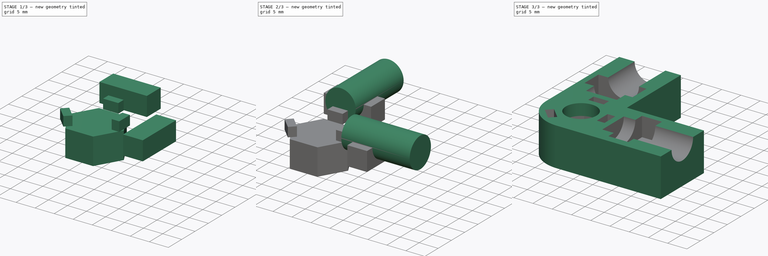
[diagram: build sequence overview — one tinted view per stage of 3, left to right]
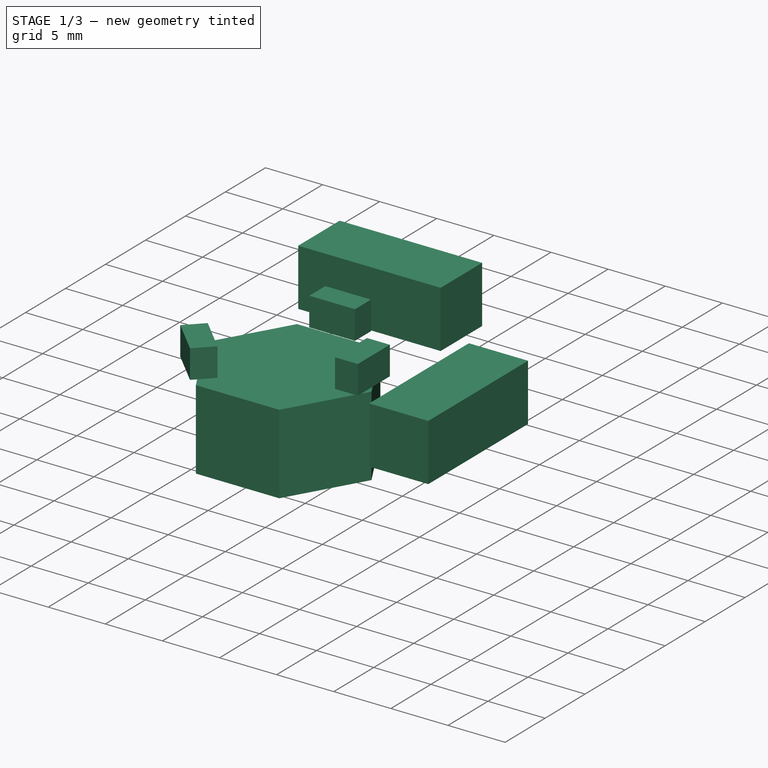
[diagram: stage 1 of 3 — iso view after this stage's code; geometry added in this stage tinted green]
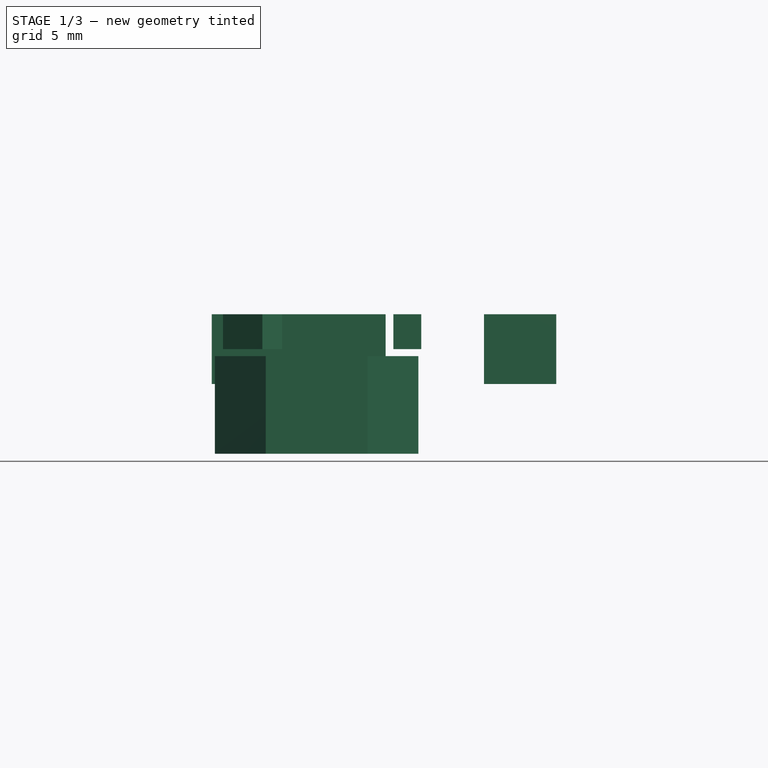
[diagram: stage 1 of 3 — front view after this stage's code; geometry added in this stage tinted green]
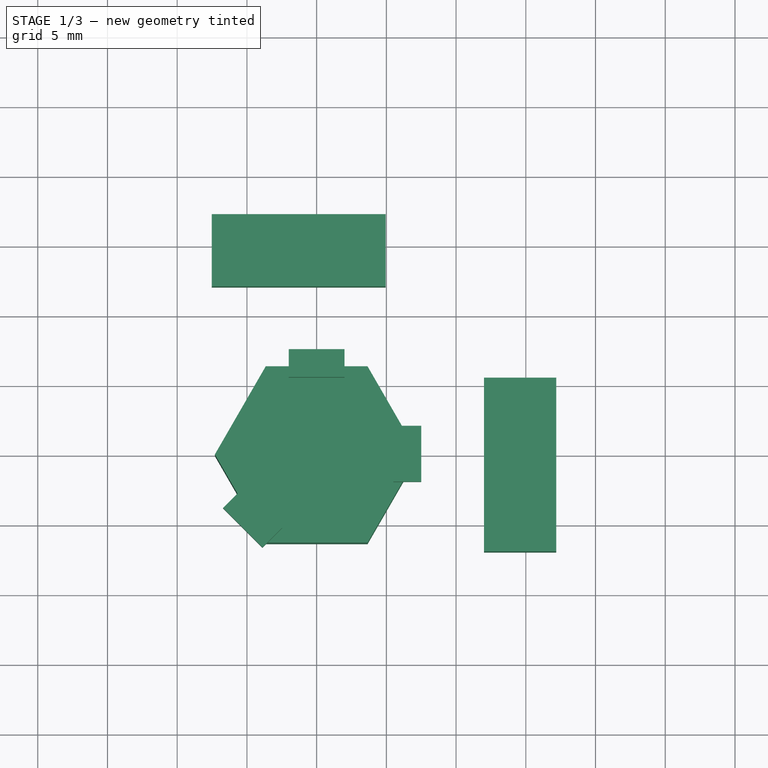
[diagram: stage 1 of 3 — top view after this stage's code; geometry added in this stage tinted green]
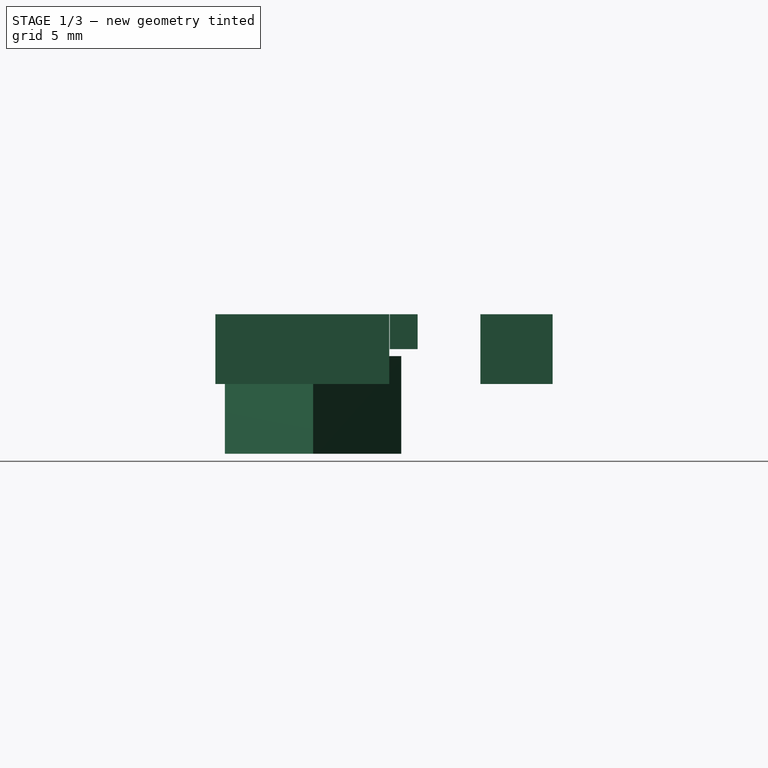
[diagram: stage 1 of 3 — right view after this stage's code; geometry added in this stage tinted green]
FCSTD DOCUMENT  (FreeCAD 0.16R6707 (Git))
Label: Corner_Top
License: All rights reserved
LicenseURL: http://en.wikipedia.org/wiki/All_rights_reserved
objects: Sketcher::SketchObject×6, PartDesign::Pad×6, Part::MultiFuse×1, Part::Cut×1
note: 20 computed .brp shape members not serialized (recipe doc carries the construction recipe); baked Part::Feature solids carry a one-line shape summary decoded from their .brp

FEATURE [Sketcher::SketchObject] Sketch003
  Placement = pos=(0,0,10) rot=(0,0,1;0rad)
  sketch-geometry (8):
    g0: LineSegment StartX=-7.51951 StartY=17.1801 StartZ=0 EndX=4.94919 EndY=17.1801 EndZ=0
    g1: LineSegment StartX=4.94919 StartY=17.1801 StartZ=0 EndX=4.94919 EndY=12 EndZ=0
    g2: LineSegment StartX=4.94919 StartY=12 StartZ=0 EndX=-7.51951 EndY=12 EndZ=0
    g3: LineSegment StartX=-7.51951 StartY=12 StartZ=0 EndX=-7.51951 EndY=17.1801 EndZ=0
    g4: LineSegment StartX=12 StartY=5.46027 StartZ=0 EndX=17.1801 EndY=5.46027 EndZ=0
    g5: LineSegment StartX=17.1801 StartY=5.46027 StartZ=0 EndX=17.1801 EndY=-7.00843 EndZ=0
    g6: LineSegment StartX=17.1801 StartY=-7.00843 StartZ=0 EndX=12 EndY=-7.00843 EndZ=0
    g7: LineSegment StartX=12 StartY=-7.00843 StartZ=0 EndX=12 EndY=5.46027 EndZ=0
  constraints (20):
    c: Coincident(g0,g1)
    c: Coincident(g1,g2)
    c: Coincident(g2,g3)
    c: Coincident(g3,g0)
    c: Horizontal(g0)
    c: Horizontal(g2)
    c: Vertical(g1)
    c: Vertical(g3)
    c: Coincident(g4,g5)
    c: Coincident(g5,g6)
    c: Coincident(g6,g7)
    c: Coincident(g7,g4)
    c: Horizontal(g4)
    c: Horizontal(g6)
    c: Vertical(g5)
    c: Vertical(g7)
    c: Equal(g1,g6)
    c: Equal(g7,g2)
    c: DistanceX(g-1,g6) = 12
    c: DistanceY(g-1,g1) = 12
FEATURE [PartDesign::Pad] Pad003  label="NutMount"
  Length = 5
  Length2 = 100
  Placement = pos=(0,0,10) rot=(0,0,1;0rad)
  Reversed = true
  Sketch = -> Sketch003
  Type = 0
FEATURE [Sketcher::SketchObject] Sketch004
  Placement = pos=(0,0,10) rot=(0,0,1;0rad)
  sketch-geometry (13):
    g0: LineSegment StartX=-2 StartY=7.5 StartZ=0 EndX=2 EndY=7.5 EndZ=0
    g1: LineSegment StartX=2 StartY=7.5 StartZ=0 EndX=2 EndY=5.5 EndZ=0
    g2: LineSegment StartX=2 StartY=5.5 StartZ=0 EndX=-2 EndY=5.5 EndZ=0
    g3: LineSegment StartX=-2 StartY=5.5 StartZ=0 EndX=-2 EndY=7.5 EndZ=0
    g4: LineSegment StartX=5.5 StartY=2 StartZ=0 EndX=7.5 EndY=2 EndZ=0
    g5: LineSegment StartX=7.5 StartY=2 StartZ=0 EndX=7.5 EndY=-2 EndZ=0
    g6: LineSegment StartX=7.5 StartY=-2 StartZ=0 EndX=5.5 EndY=-2 EndZ=0
    g7: LineSegment StartX=5.5 StartY=-2 StartZ=0 EndX=5.5 EndY=2 EndZ=0
    g8: LineSegment StartX=-6.71751 StartY=-3.88909 StartZ=0 EndX=-5.3033 EndY=-2.47487 EndZ=0
    g9: LineSegment StartX=-5.3033 StartY=-2.47487 StartZ=0 EndX=-2.47487 EndY=-5.3033 EndZ=0
    g10: LineSegment StartX=-2.47487 StartY=-5.3033 StartZ=0 EndX=-3.88909 EndY=-6.71751 EndZ=0
    g11: LineSegment StartX=-6.71751 StartY=-3.88909 StartZ=0 EndX=-3.88909 EndY=-6.71751 EndZ=0
    g12: LineSegment [constr] StartX=-5.3033 StartY=-5.3033 StartZ=0 EndX=0 EndY=0 EndZ=0
  constraints (41):
    c: Coincident(g0,g1)
    c: Coincident(g1,g2)
    c: Coincident(g2,g3)
    c: Coincident(g3,g0)
    c: Horizontal(g0)
    c: Horizontal(g2)
    c: Vertical(g1)
    c: Vertical(g3)
    c: Symmetric(g2,g1,g-2)
    c: DistanceX(g0,g0) = 4
    c: DistanceY(g1,g1) = 2
    c: DistanceY(g-1,g2) = 5.5
    c: Coincident(g4,g5)
    c: Coincident(g5,g6)
    c: Coincident(g6,g7)
    c: Coincident(g7,g4)
    c: Horizontal(g4)
    c: Horizontal(g6)
    c: Vertical(g5)
    c: Vertical(g7)
    c: Symmetric(g4,g6,g-1)
    c: DistanceX(g-1,g4) = 5.5
    c: Coincident(g8,g9)
    c: Coincident(g9,g10)
    c: Coincident(g11,g10)
    c: Coincident(g8,g11)
    c: Parallel(g8,g10)
    c: Parallel(g11,g9)
    c: Perpendicular(g9,g8)
    c: Equal(g8,g10)
    c: Equal(g10,g4)
    c: Equal(g4,g3)
    c: Equal(g9,g11)
    c: Equal(g11,g2)
    c: Equal(g2,g7)
    c: Coincident(g12,g-1)
    c: PointOnObject(g12,g11)
    c: Angle(g12,g-1) = 2.35619
    c: Symmetric(g8,g10,g12)
    c: Perpendicular(g12,g9)
    c: Distance(g-1,g12) = 7.5
FEATURE [PartDesign::Pad] Pad004  label="Clip"
  Length = 2.5
  Length2 = 100
  Placement = pos=(0,0,10) rot=(0,0,1;0rad)
  Reversed = true
  Sketch = -> Sketch004
  Type = 0
FEATURE [Sketcher::SketchObject] Sketch005
  Placement = pos=(0,0,0) rot=(-1,0,0;3.14159rad)
  sketch-geometry (7):
    g0: LineSegment StartX=3.65 StartY=-6.32199 StartZ=0 EndX=7.3 EndY=0 EndZ=0
    g1: LineSegment StartX=7.3 StartY=0 StartZ=0 EndX=3.65 EndY=6.32199 EndZ=0
    g2: LineSegment StartX=3.65 StartY=6.32199 StartZ=0 EndX=-3.65 EndY=6.32199 EndZ=0
    g3: LineSegment StartX=-3.65 StartY=6.32199 StartZ=0 EndX=-7.3 EndY=0 EndZ=0
    g4: LineSegment StartX=-7.3 StartY=0 StartZ=0 EndX=-3.65 EndY=-6.32199 EndZ=0
    g5: LineSegment StartX=-3.65 StartY=-6.32199 StartZ=0 EndX=3.65 EndY=-6.32199 EndZ=0
    g6: Circle [constr] CenterX=0 CenterY=0 CenterZ=0 NormalX=0 NormalY=0 NormalZ=1 Radius=7.3
  constraints (16):
    c: Coincident(g0,g1)
    c: Coincident(g1,g2)
    c: Coincident(g2,g3)
    c: Coincident(g3,g4)
    c: Coincident(g4,g5)
    c: Coincident(g5,g0)
    c: Equal(g0, g1-g5) x5
    c: PointOnObject(g0,g6)
    c: PointOnObject(g1,g6)
    c: PointOnObject(g2,g6)
    c: PointOnObject(g3,g6)
    c: PointOnObject(g4,g6)
    c: PointOnObject(g5,g6)
    c: Coincident(g6,g-1)
    c: Radius(g6) = 7.3
    c: PointOnObject(g3,g-1)
FEATURE [PartDesign::Pad] Pad005  label="NutFlush"
  Length = 7
  Length2 = 100
  Placement = pos=(0,0,0) rot=(-1,0,0;3.14159rad)
  Reversed = true
  Sketch = -> Sketch005
  Type = 0
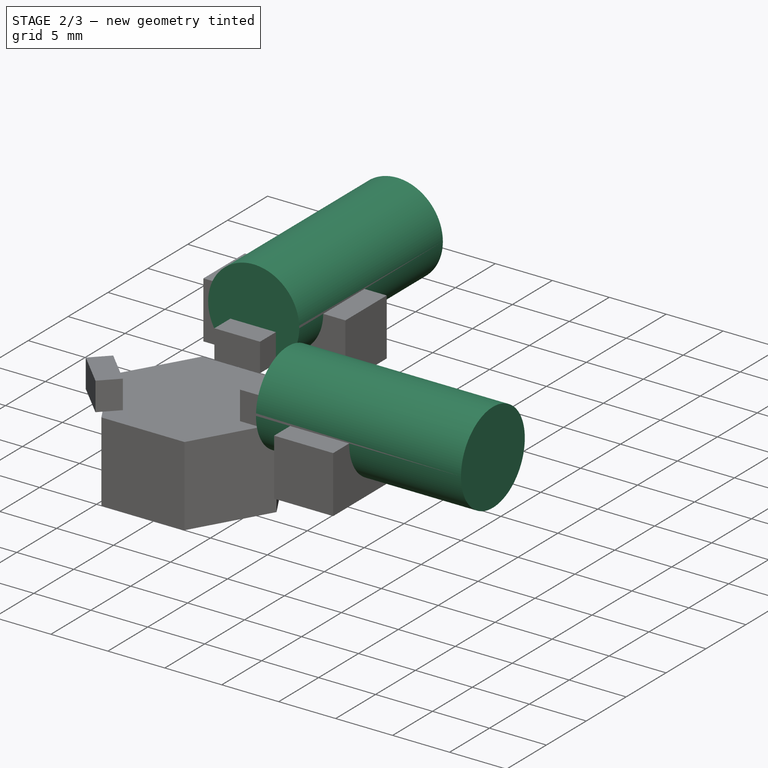
[diagram: stage 2 of 3 — iso view after this stage's code; geometry added in this stage tinted green]
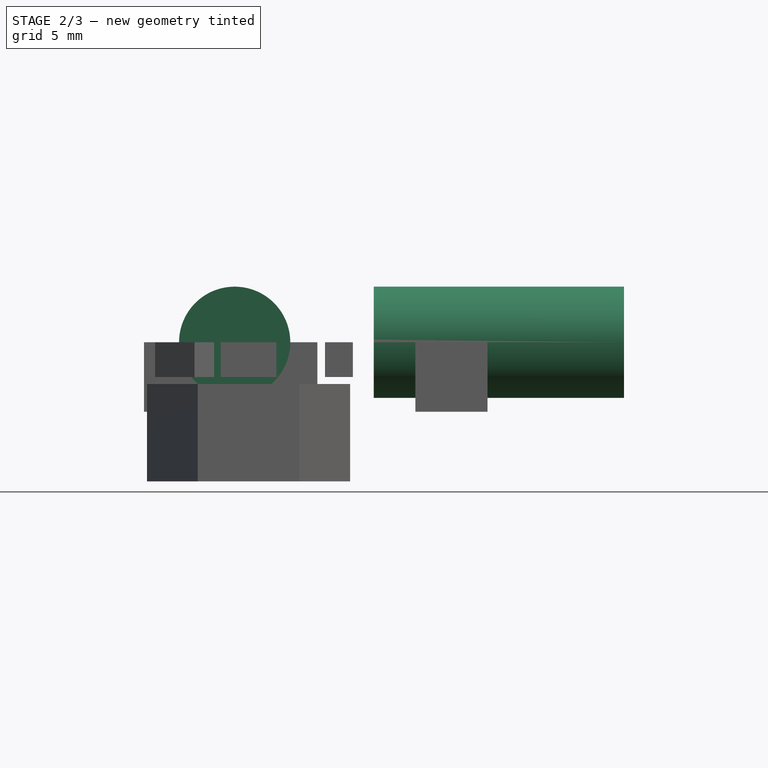
[diagram: stage 2 of 3 — front view after this stage's code; geometry added in this stage tinted green]
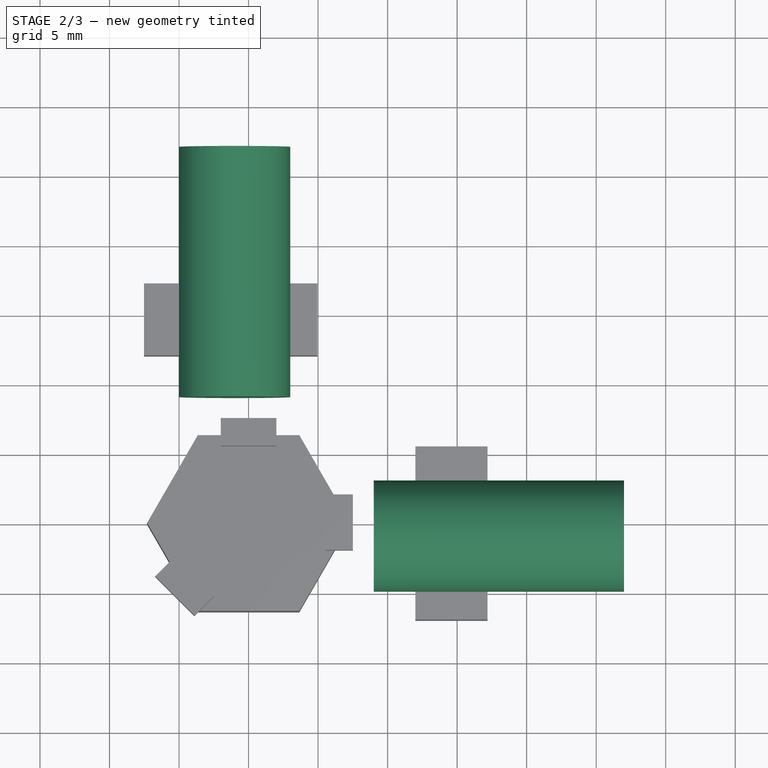
[diagram: stage 2 of 3 — top view after this stage's code; geometry added in this stage tinted green]
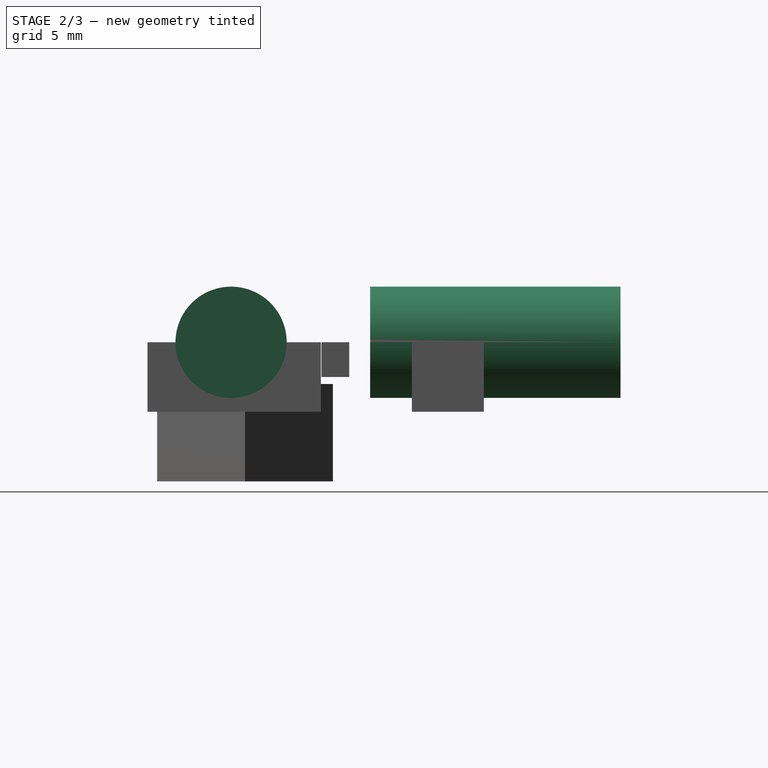
[diagram: stage 2 of 3 — right view after this stage's code; geometry added in this stage tinted green]
FEATURE [Sketcher::SketchObject] Sketch001
  Placement = pos=(27,0,0) rot=(0.57735,0.57735,0.57735;2.0944rad)
  sketch-geometry (1):
    g0: Circle CenterX=-1 CenterY=10 CenterZ=0 NormalX=0 NormalY=0 NormalZ=1 Radius=4
  constraints (3):
    c: Radius(g0) = 4
    c: DistanceY(g-1,g0) = 10
    c: DistanceX(g0,g-1) = 1
FEATURE [PartDesign::Pad] Pad001  label="Mount001"
  Length = 18
  Length2 = 100
  Placement = pos=(27,0,0) rot=(0.57735,0.57735,0.57735;2.0944rad)
  Reversed = true
  Sketch = -> Sketch001
  Type = 0
FEATURE [Sketcher::SketchObject] Sketch002
  Placement = pos=(0,27,0) rot=(1,0,0;1.5708rad)
  sketch-geometry (1):
    g0: Circle CenterX=-1 CenterY=10 CenterZ=0 NormalX=0 NormalY=0 NormalZ=1 Radius=4
  constraints (3):
    c: DistanceX(g0,g-1) = 1
    c: DistanceY(g-1,g0) = 10
    c: Radius(g0) = 4
FEATURE [PartDesign::Pad] Pad002  label="Mount002"
  Length = 18
  Length2 = 100
  Placement = pos=(0,27,0) rot=(1,0,0;1.5708rad)
  Sketch = -> Sketch002
  Type = 0
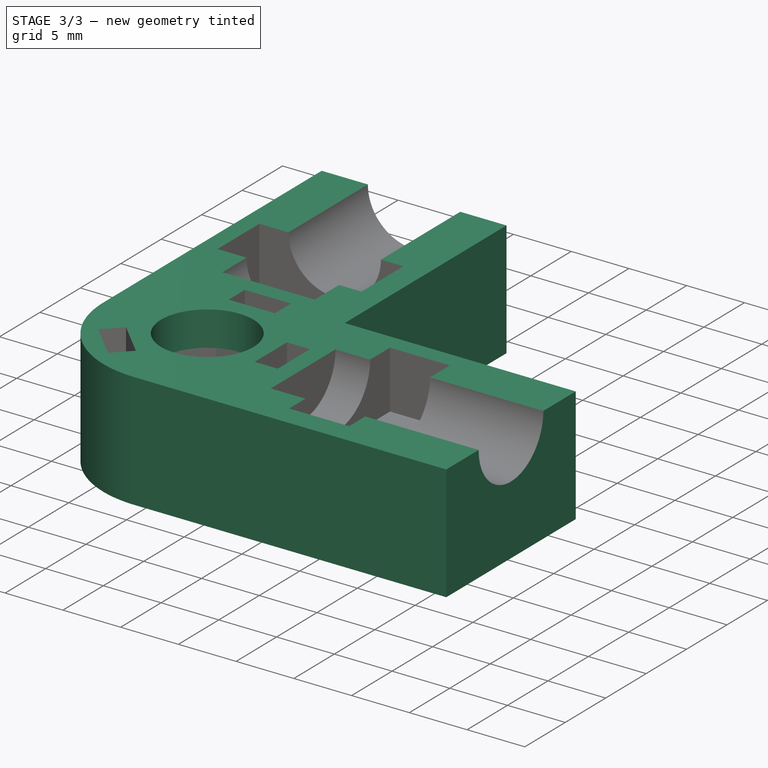
[diagram: stage 3 of 3 — iso view after this stage's code; geometry added in this stage tinted green]
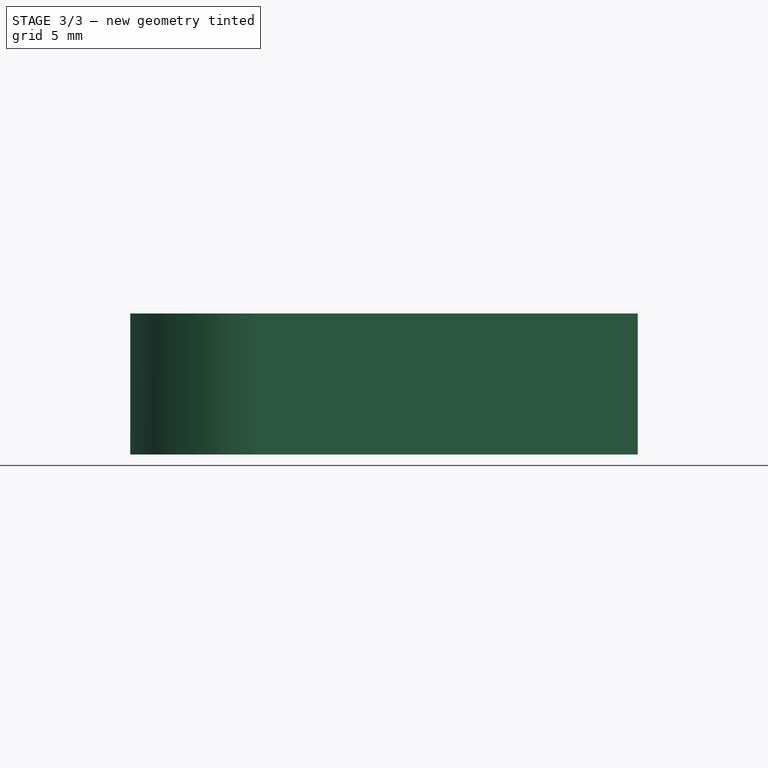
[diagram: stage 3 of 3 — front view after this stage's code; geometry added in this stage tinted green]
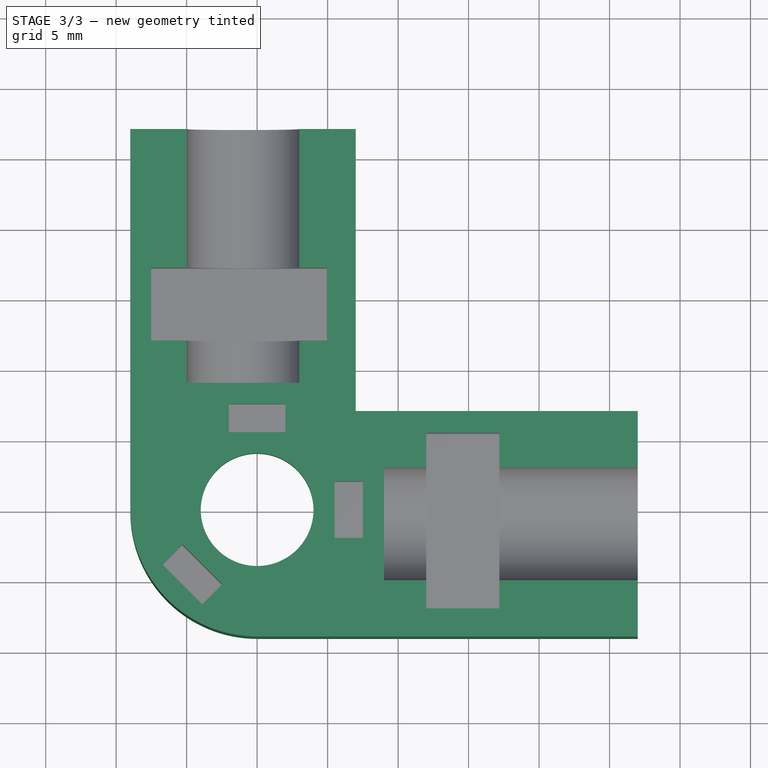
[diagram: stage 3 of 3 — top view after this stage's code; geometry added in this stage tinted green]
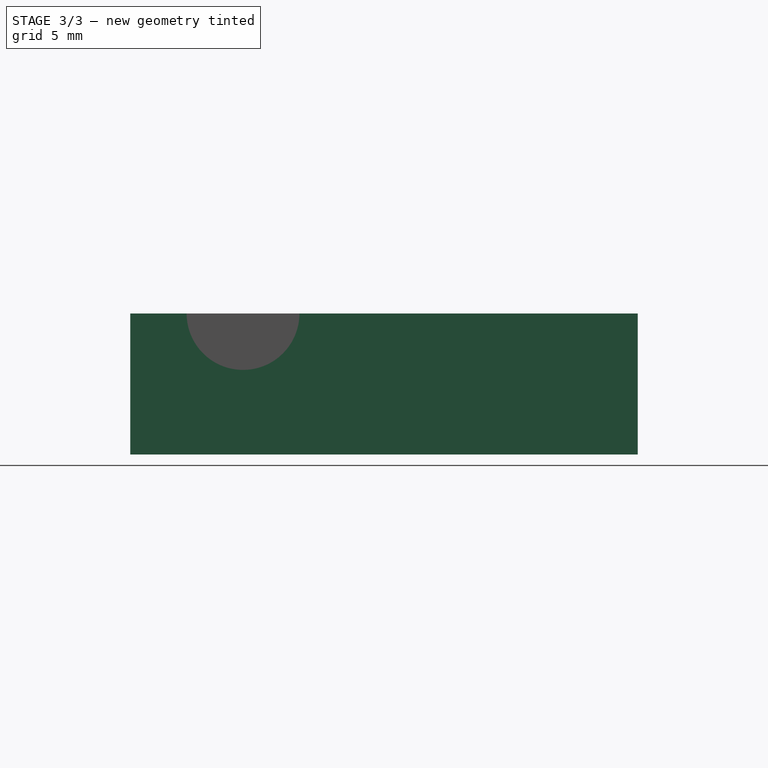
[diagram: stage 3 of 3 — right view after this stage's code; geometry added in this stage tinted green]
FEATURE [Sketcher::SketchObject] Sketch
  sketch-geometry (8):
    g0: Circle CenterX=0 CenterY=0 CenterZ=0 NormalX=0 NormalY=0 NormalZ=1 Radius=4
    g1: LineSegment StartX=-9 StartY=3.59797e-05 StartZ=0 EndX=-9 EndY=27 EndZ=0
    g2: LineSegment StartX=-9 StartY=27 StartZ=0 EndX=7 EndY=27 EndZ=0
    g3: LineSegment StartX=7 StartY=27 StartZ=0 EndX=7 EndY=7 EndZ=0
    g4: LineSegment StartX=7 StartY=7 StartZ=0 EndX=27 EndY=7 EndZ=0
    g5: LineSegment StartX=27 StartY=7 StartZ=0 EndX=27 EndY=-9 EndZ=0
    g6: LineSegment StartX=27 StartY=-9 StartZ=0 EndX=3.59797e-05 EndY=-9 EndZ=0
    g7: ArcOfCircle CenterX=0 CenterY=0 CenterZ=0 NormalX=0 NormalY=0 NormalZ=1 Radius=9 StartAngle=3.14159 EndAngle=4.71239
  constraints (23):
    c: Coincident(g-1,g0)
    c: Radius(g0) = 4
    c: Coincident(g1,g2)
    c: Coincident(g2,g3)
    c: Vertical(g3)
    c: Horizontal(g4)
    c: Coincident(g4,g5)
    c: Vertical(g5)
    c: Coincident(g5,g6)
    c: Horizontal(g6)
    c: Vertical(g1)
    c: Horizontal(g2)
    c: Equal(g1,g6)
    c: Equal(g5,g2)
    c: Equal(g3,g4)
    c: DistanceY(g5,g5) = 16
    c: Coincident(g7,g1)
    c: Coincident(g7,g6)
    c: Coincident(g7,g-1)
    c: Radius(g7) = 9
    c: Coincident(g3,g4)
    c: Tangent(g7,g1)
    c: DistanceY(g3,g3) = 20
FEATURE [PartDesign::Pad] Pad  label="BaseBlock"
  Length = 10
  Length2 = 100
  Sketch = -> Sketch
  Type = 0
FEATURE [Part::MultiFuse] Fusion  label="CutBlock"
  Shapes = -> [Pad004,Pad003,Pad002,Pad001,Pad005]
FEATURE [Part::Cut] Cut
  Base = -> Pad
  Tool = -> Fusion
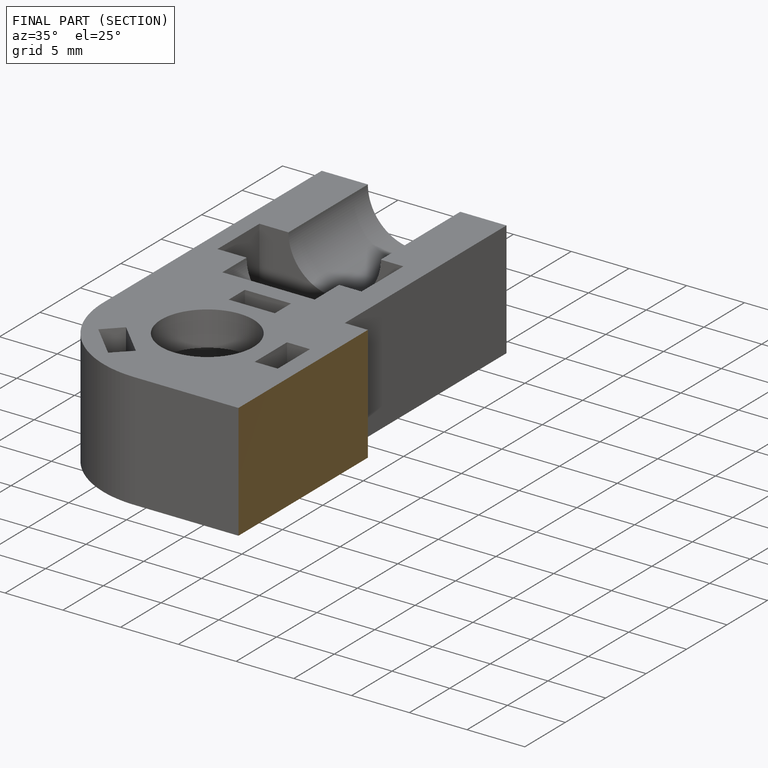
[diagram: finished part — half-section view (interior)]
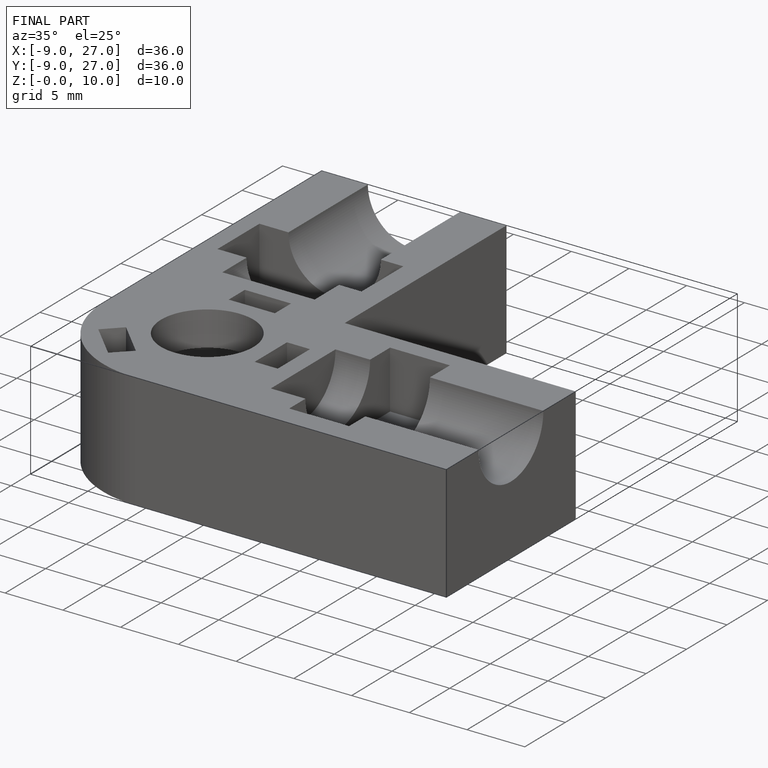
[diagram: finished part — iso view with bounding-box wireframe]
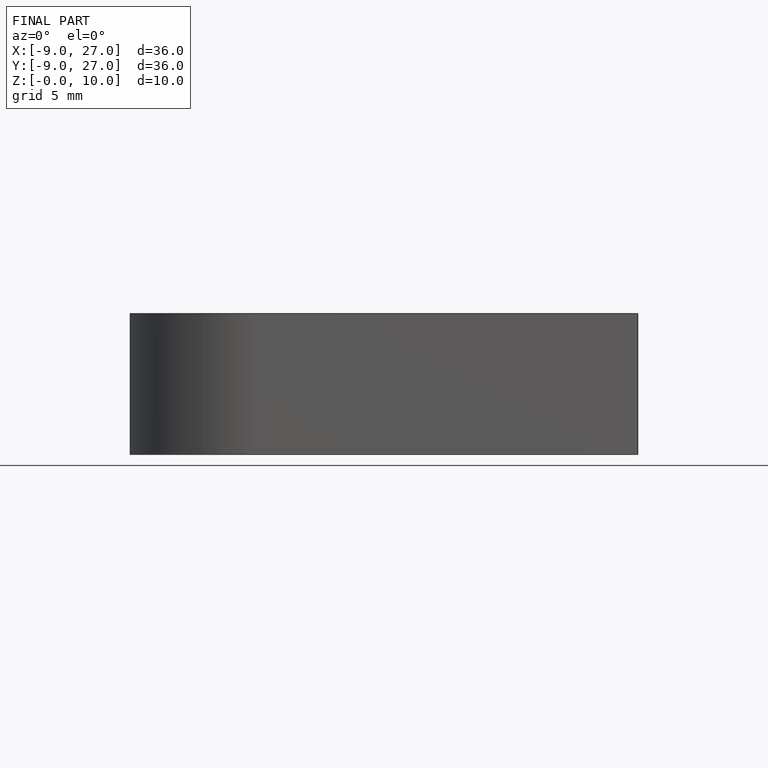
[diagram: finished part — front view with bounding-box wireframe]
